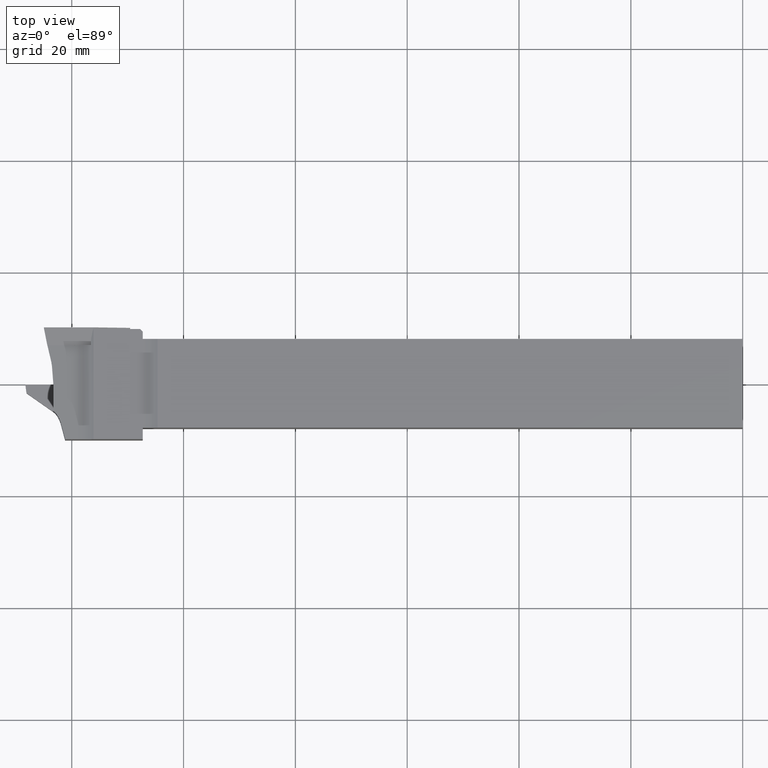
[diagram: clean part render]
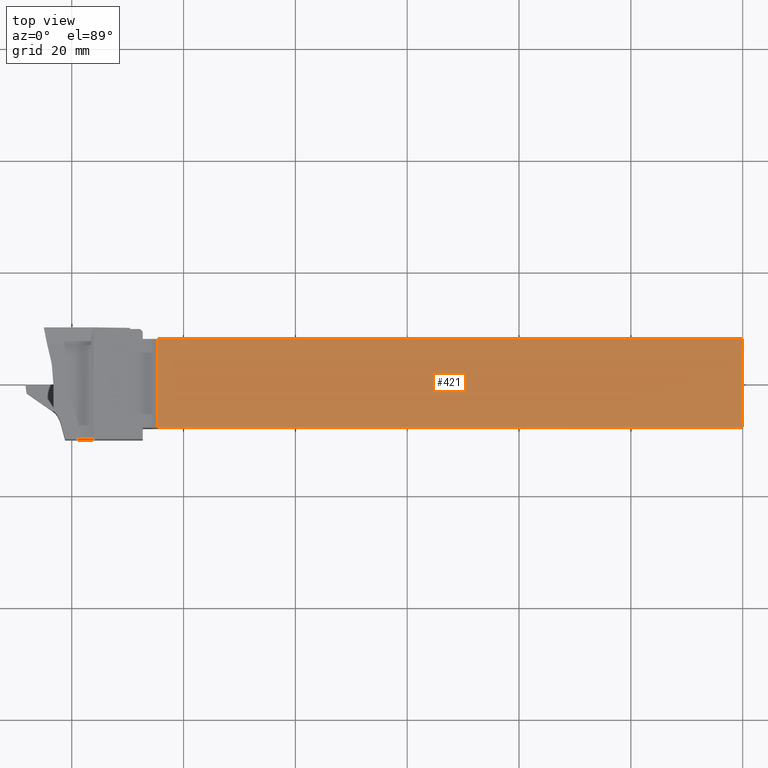
[diagram: same view with one face highlighted and labeled with its STEP entity id]
A machine part, top view. The second image highlights one B-rep face of the part: STEP entity #421.
In plain terms, the highlighted planar face has unit normal (0, 0, 1).
Its self-contained STEP definition (entity closure, byte-faithful):
#201 = PLANE ( 'NONE',  #1315 ) ;
#235 = CARTESIAN_POINT ( 'NONE',  ( 0.0000000000000000000, 7.937500000000000000, 7.937500000000000000 ) ) ;
#289 = ORIENTED_EDGE ( 'NONE', *, *, #2330, .T. ) ;
#307 = FACE_OUTER_BOUND ( 'NONE', #2032, .T. ) ;
#353 = CARTESIAN_POINT ( 'NONE',  ( 0.0000000000000000000, 0.0000000000000000000, 7.937500000000000000 ) ) ;
#421 = ADVANCED_FACE ( 'NONE', ( #307 ), #201, .T. ) ;
#479 = LINE ( 'NONE', #1153, #1201 ) ;
#491 = DIRECTION ( 'NONE',  ( 1.000000000000000000, 0.0000000000000000000, 0.0000000000000000000 ) ) ;
#577 = DIRECTION ( 'NONE',  ( 1.000000000000000000, 0.0000000000000000000, -0.0000000000000000000 ) ) ;
#629 = CARTESIAN_POINT ( 'NONE',  ( -104.6621210906208700, 7.937500000000014200, 7.937500000000000000 ) ) ;
#643 = DIRECTION ( 'NONE',  ( 0.0000000000000000000, 0.0000000000000000000, 1.000000000000000000 ) ) ;
#1153 = CARTESIAN_POINT ( 'NONE',  ( -107.3000000000000100, 7.937500000000000000, 7.937500000000000000 ) ) ;
#1201 = VECTOR ( 'NONE', #1430, 1000.000000000000000 ) ;
#1315 = AXIS2_PLACEMENT_3D ( 'NONE', #353, #643, #577 ) ;
#1430 = DIRECTION ( 'NONE',  ( -1.000000000000000000, -0.0000000000000000000, -0.0000000000000000000 ) ) ;
#1445 = VERTEX_POINT ( 'NONE', #235 ) ;
#1547 = EDGE_CURVE ( 'NONE', #3372, #1557, #1561, .T. ) ;
#1557 = VERTEX_POINT ( 'NONE', #629 ) ;
#1561 = LINE ( 'NONE', #2418, #1902 ) ;
#1706 = LINE ( 'NONE', #2407, #2154 ) ;
#1750 = ORIENTED_EDGE ( 'NONE', *, *, #1547, .F. ) ;
#1877 = CARTESIAN_POINT ( 'NONE',  ( 0.0000000000000000000, -7.937500000000000000, 7.937500000000000000 ) ) ;
#1886 = VERTEX_POINT ( 'NONE', #1877 ) ;
#1902 = VECTOR ( 'NONE', #3108, 1000.000000000000000 ) ;
#2032 = EDGE_LOOP ( 'NONE', ( #1750, #2662, #289, #2613 ) ) ;
#2154 = VECTOR ( 'NONE', #491, 1000.000000000000000 ) ;
#2260 = EDGE_CURVE ( 'NONE', #3372, #1886, #1706, .T. ) ;
#2330 = EDGE_CURVE ( 'NONE', #1886, #1445, #3145, .T. ) ;
#2333 = EDGE_CURVE ( 'NONE', #1445, #1557, #479, .T. ) ;
#2367 = CARTESIAN_POINT ( 'NONE',  ( -104.6621210906208700, -7.937500000000000000, 7.937499999999992900 ) ) ;
#2407 = CARTESIAN_POINT ( 'NONE',  ( -107.3000000000000100, -7.937500000000000000, 7.937500000000000000 ) ) ;
#2418 = CARTESIAN_POINT ( 'NONE',  ( -104.6621210906208900, -164.3558317570675300, 7.937500000000000000 ) ) ;
#2429 = DIRECTION ( 'NONE',  ( -0.0000000000000000000, 1.000000000000000000, -0.0000000000000000000 ) ) ;
#2438 = CARTESIAN_POINT ( 'NONE',  ( 0.0000000000000000000, 7.937500000000000000, 7.937500000000000000 ) ) ;
#2551 = VECTOR ( 'NONE', #2429, 1000.000000000000000 ) ;
#2613 = ORIENTED_EDGE ( 'NONE', *, *, #2333, .T. ) ;
#2662 = ORIENTED_EDGE ( 'NONE', *, *, #2260, .T. ) ;
#3108 = DIRECTION ( 'NONE',  ( 9.856383386231856400E-017, 1.000000000000000000, -0.0000000000000000000 ) ) ;
#3145 = LINE ( 'NONE', #2438, #2551 ) ;
#3372 = VERTEX_POINT ( 'NONE', #2367 ) ;